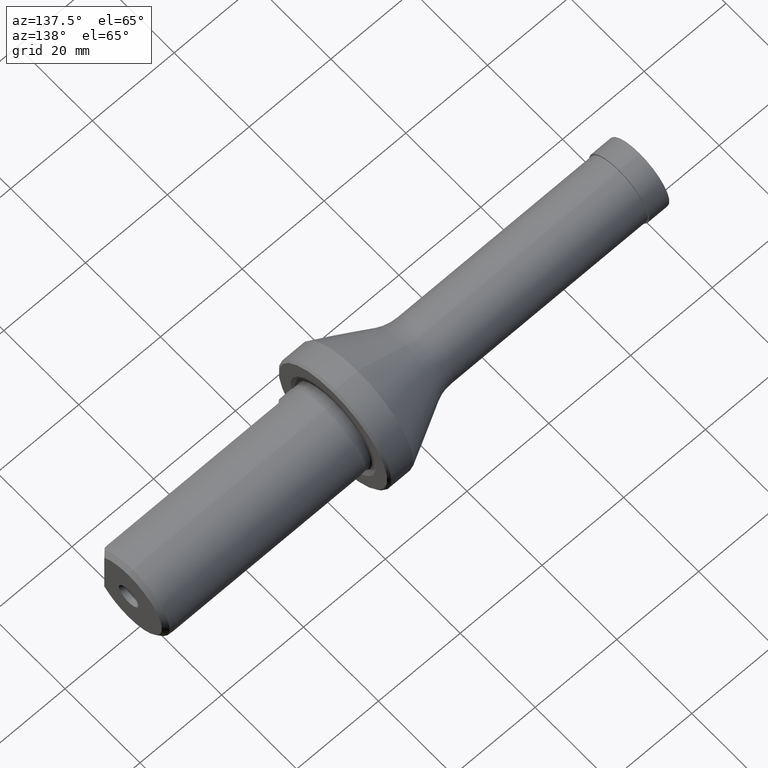
[diagram: clean part render]
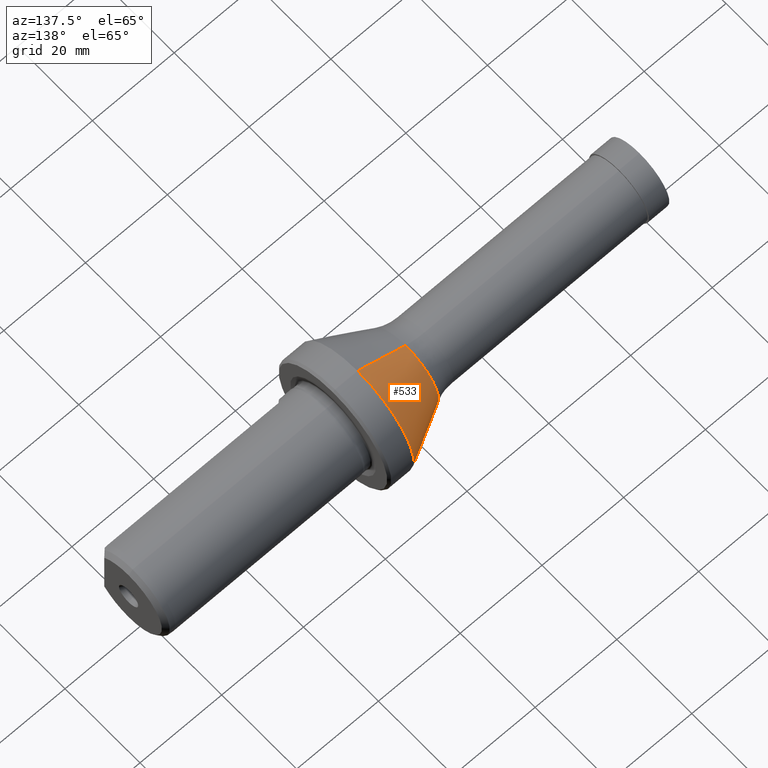
[diagram: same view with one face highlighted and labeled with its STEP entity id]
A machine part, auxiliary view. The second image highlights one B-rep face of the part: STEP entity #533.
In plain terms, the highlighted conical surface has half-angle 27.668 deg.
Its self-contained STEP definition (entity closure, byte-faithful):
#5 = VERTEX_POINT ( 'NONE', #1085 ) ;
#7 = DIRECTION ( 'NONE',  ( 0.8856552452074933900, 5.686566499607402800E-017, 0.4643433930147543600 ) ) ;
#127 = CARTESIAN_POINT ( 'NONE',  ( 68.45000000000000300, 0.0000000000000000000, 0.0000000000000000000 ) ) ;
#147 = CONICAL_SURFACE ( 'NONE', #1012, 14.99999999999999800, 0.4828930871201188600 ) ;
#177 = VECTOR ( 'NONE', #7, 1000.000000000000100 ) ;
#225 = DIRECTION ( 'NONE',  ( 1.000000000000000000, 0.0000000000000000000, 0.0000000000000000000 ) ) ;
#231 = EDGE_CURVE ( 'NONE', #467, #1221, #490, .T. ) ;
#255 = LINE ( 'NONE', #954, #177 ) ;
#275 = CIRCLE ( 'NONE', #871, 8.843447547925066500 ) ;
#281 = DIRECTION ( 'NONE',  ( -1.000000000000000000, -0.0000000000000000000, -0.0000000000000000000 ) ) ;
#380 = CARTESIAN_POINT ( 'NONE',  ( 56.70743393014754500, 0.0000000000000000000, 8.843447547925066500 ) ) ;
#438 = DIRECTION ( 'NONE',  ( 0.0000000000000000000, 0.0000000000000000000, 1.000000000000000000 ) ) ;
#442 = EDGE_CURVE ( 'NONE', #742, #467, #255, .T. ) ;
#467 = VERTEX_POINT ( 'NONE', #894 ) ;
#487 = EDGE_CURVE ( 'NONE', #5, #1221, #815, .T. ) ;
#490 = CIRCLE ( 'NONE', #521, 14.99999999999999800 ) ;
#495 = EDGE_LOOP ( 'NONE', ( #770, #713, #864, #1026 ) ) ;
#521 = AXIS2_PLACEMENT_3D ( 'NONE', #581, #1157, #781 ) ;
#533 = ADVANCED_FACE ( 'NONE', ( #1122 ), #147, .T. ) ;
#581 = CARTESIAN_POINT ( 'NONE',  ( 68.45000000000000300, 0.0000000000000000000, 0.0000000000000000000 ) ) ;
#593 = CARTESIAN_POINT ( 'NONE',  ( 68.45000000000000300, 0.0000000000000000000, -14.99999999999999800 ) ) ;
#692 = DIRECTION ( 'NONE',  ( 0.0000000000000000000, 0.0000000000000000000, -1.000000000000000000 ) ) ;
#713 = ORIENTED_EDGE ( 'NONE', *, *, #442, .T. ) ;
#719 = VECTOR ( 'NONE', #845, 1000.000000000000100 ) ;
#742 = VERTEX_POINT ( 'NONE', #380 ) ;
#770 = ORIENTED_EDGE ( 'NONE', *, *, #1211, .F. ) ;
#781 = DIRECTION ( 'NONE',  ( 0.0000000000000000000, 0.0000000000000000000, 1.000000000000000000 ) ) ;
#804 = CARTESIAN_POINT ( 'NONE',  ( 56.70743393014754500, 0.0000000000000000000, 0.0000000000000000000 ) ) ;
#808 = CARTESIAN_POINT ( 'NONE',  ( 68.45000000000000300, 0.0000000000000000000, -14.99999999999999800 ) ) ;
#815 = LINE ( 'NONE', #808, #719 ) ;
#845 = DIRECTION ( 'NONE',  ( 0.8856552452074933900, 0.0000000000000000000, -0.4643433930147543600 ) ) ;
#864 = ORIENTED_EDGE ( 'NONE', *, *, #231, .T. ) ;
#871 = AXIS2_PLACEMENT_3D ( 'NONE', #804, #281, #438 ) ;
#894 = CARTESIAN_POINT ( 'NONE',  ( 68.45000000000000300, 1.836970198721029600E-015, 14.99999999999999800 ) ) ;
#954 = CARTESIAN_POINT ( 'NONE',  ( 68.45000000000000300, 1.836970198721029600E-015, 14.99999999999999800 ) ) ;
#1012 = AXIS2_PLACEMENT_3D ( 'NONE', #127, #225, #692 ) ;
#1026 = ORIENTED_EDGE ( 'NONE', *, *, #487, .F. ) ;
#1085 = CARTESIAN_POINT ( 'NONE',  ( 56.70743393014754500, 1.083009973299394400E-015, -8.843447547925066500 ) ) ;
#1122 = FACE_OUTER_BOUND ( 'NONE', #495, .T. ) ;
#1157 = DIRECTION ( 'NONE',  ( -1.000000000000000000, -0.0000000000000000000, -0.0000000000000000000 ) ) ;
#1211 = EDGE_CURVE ( 'NONE', #742, #5, #275, .T. ) ;
#1221 = VERTEX_POINT ( 'NONE', #593 ) ;